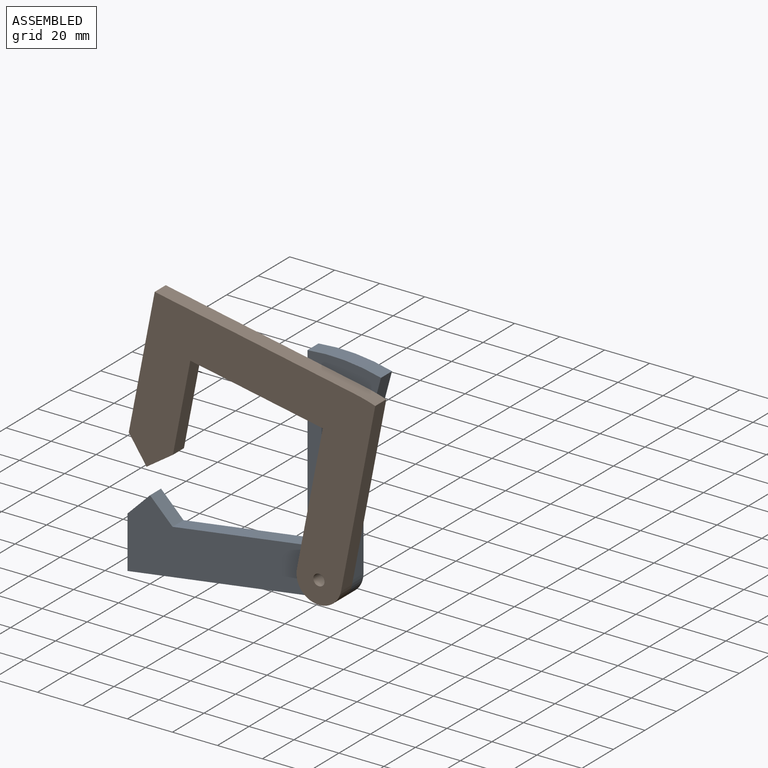
[diagram: assembled view]
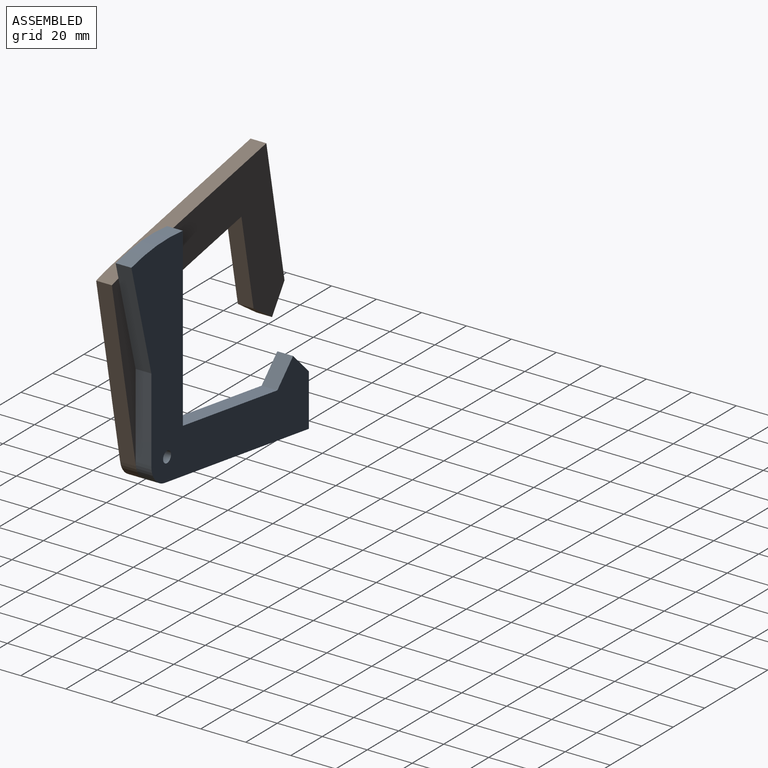
[diagram: assembled view, second angle]
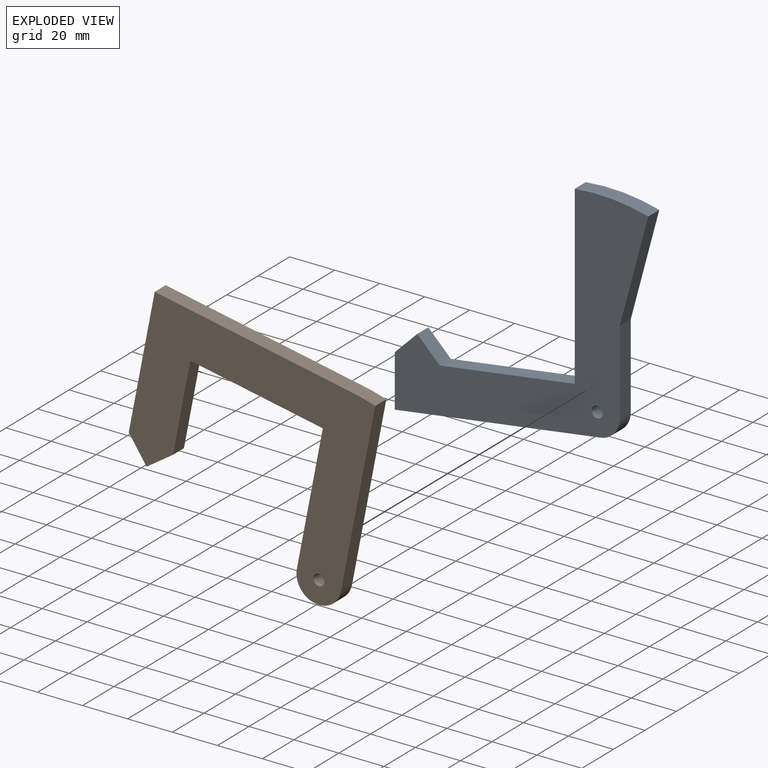
[diagram: exploded view]
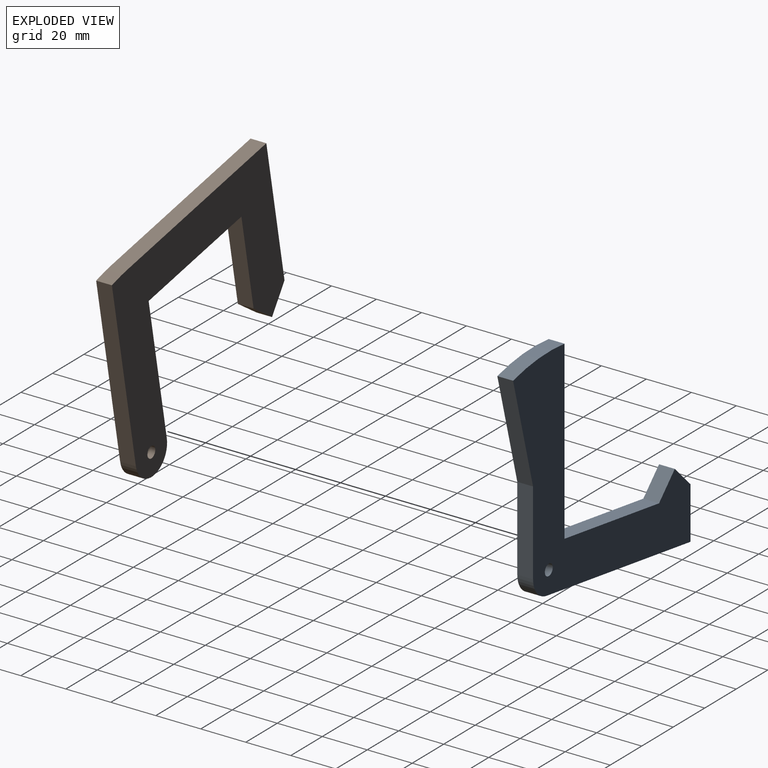
[diagram: exploded view, second angle]
ASSEMBLY  parts=2 mates=2
PART A: 13 faces, bbox 112.7x7x110.7 mm
  f0: plane 37.32x7mm, normal (1,0,0), area 261.2mm2, adj f1,f9,f10,f11
  f1: plane 47.32x12.68mm, normal (0.97,0,-0.26), area 342.9mm2, adj f0,f2,f10,f11
  f2: cylinder r=87.62mm len=32.68mm, axis (0,-1,0), area 230.7mm2, adj f1,f3,f10,f11
  f3: plane 78.39x7mm, normal (-1,0,0), area 548.7mm2, adj f2,f4,f10,f11
  f4: plane 60x8.66mm, normal (-0.14,0,0.99), area 424.4mm2, adj f3,f5,f10,f11
  f5: plane 10x10mm, normal (0.71,0,0.71), area 99mm2, adj f4,f6,f10,f11
  f6: plane 10x10mm, normal (-0.71,0,0.71), area 99mm2, adj f5,f7,f10,f11
  f7: plane 23.09x7mm, normal (-1,0,0), area 161.7mm2, adj f6,f8,f10,f11
  f8: plane 91.43x13.2mm, normal (0.14,0,-0.99), area 646.6mm2, adj f7,f9,f10,f11
  f9: cylinder r=10mm len=9.9mm, axis (0,-1,0), area 99.9mm2, adj f0,f8,f10,f11
  f10: plane 112.68x110.72mm, normal (0,1,0), area 3978.6mm2, adj f0,f1,f2,f3,f4,f5,f6,f7
  f11: plane 112.68x110.72mm, normal (0,-1,0), area 3978.6mm2, adj f0,f1,f2,f3,f4,f5,f6,f7
  f12: cylinder r=2.5mm len=7mm, axis (0,-1,0), area 110mm2, adj f10,f11
PART B: 13 faces, bbox 100x7x90.6 mm
  f0: plane 10x10mm, normal (-0.71,0,-0.71), area 99mm2, adj f1,f9,f10,f11
  f1: plane 10x10mm, normal (0.71,0,-0.71), area 99mm2, adj f0,f2,f10,f11
  f2: plane 40.62x7mm, normal (1,0,0), area 284.4mm2, adj f1,f3,f10,f11
  f3: plane 60x7mm, normal (0,0,-1), area 420mm2, adj f2,f4,f10,f11
  f4: plane 60.62x7mm, normal (-1,0,0), area 424.4mm2, adj f3,f5,f10,f11
  f5: cylinder r=10mm len=20mm, axis (0,1,0), area 219.9mm2, adj f4,f6,f10,f11
  f6: plane 80x7mm, normal (1,0,0), area 560mm2, adj f5,f7,f10,f11
  f7: cylinder r=80.62mm len=10mm, axis (0,1,0), area 70.2mm2, adj f6,f8,f10,f11
  f8: plane 90x7mm, normal (0,0,1), area 630mm2, adj f7,f9,f10,f11
  f9: plane 60.62x7mm, normal (-1,0,0), area 424.4mm2, adj f0,f8,f10,f11
  f10: plane 100x90.62mm, normal (0,-1,0), area 4260.3mm2, adj f0,f1,f2,f3,f4,f5,f6,f7
  f11: plane 100x90.62mm, normal (0,1,0), area 4260.3mm2, adj f0,f1,f2,f3,f4,f5,f6,f7
  f12: cylinder r=2.5mm len=7mm, axis (0,1,0), area 110mm2, adj f10,f11
PLACE A at identity fixed
PLACE B rot(axis=(0,1,0),11deg) t=(0,0,0)mm
MATE cylindrical A.f12 <-> B.f12  axis (0,-1,0) through (0,0,0)mm
MATE planar A.f11 <-> B.f11  axis (0,-1,0) through (-40,0,4.33)mm
